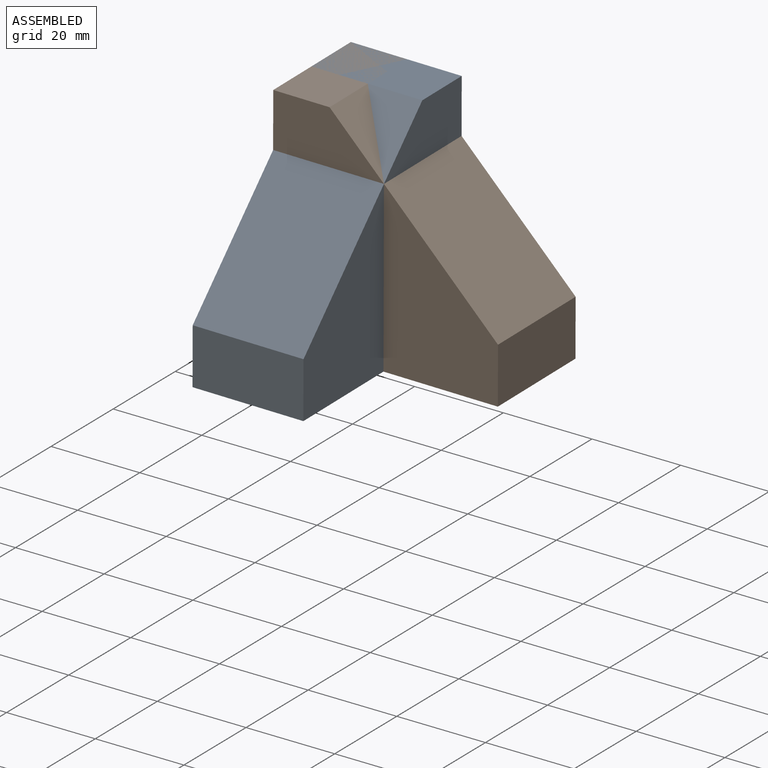
[diagram: assembled view]
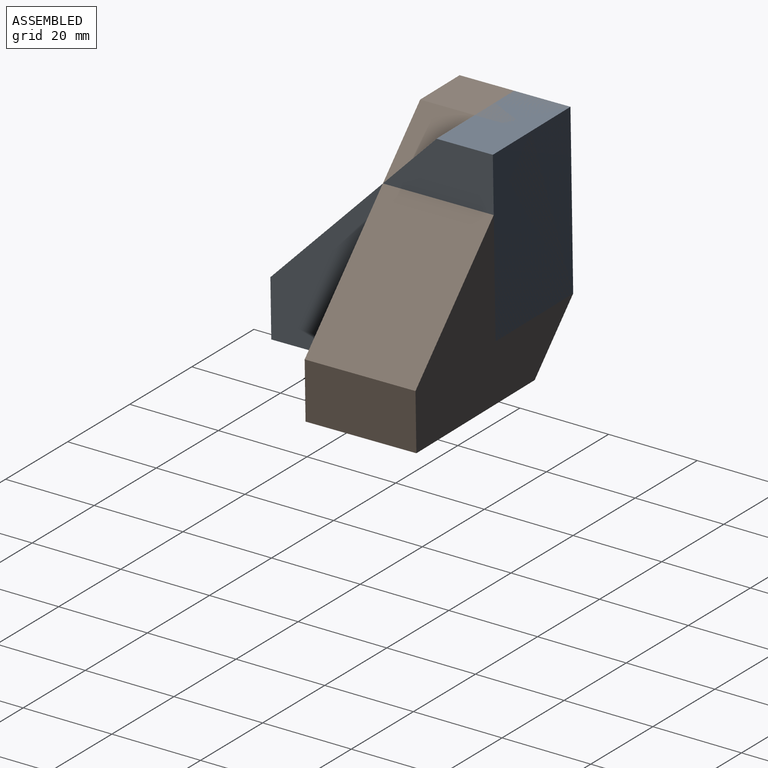
[diagram: assembled view, second angle]
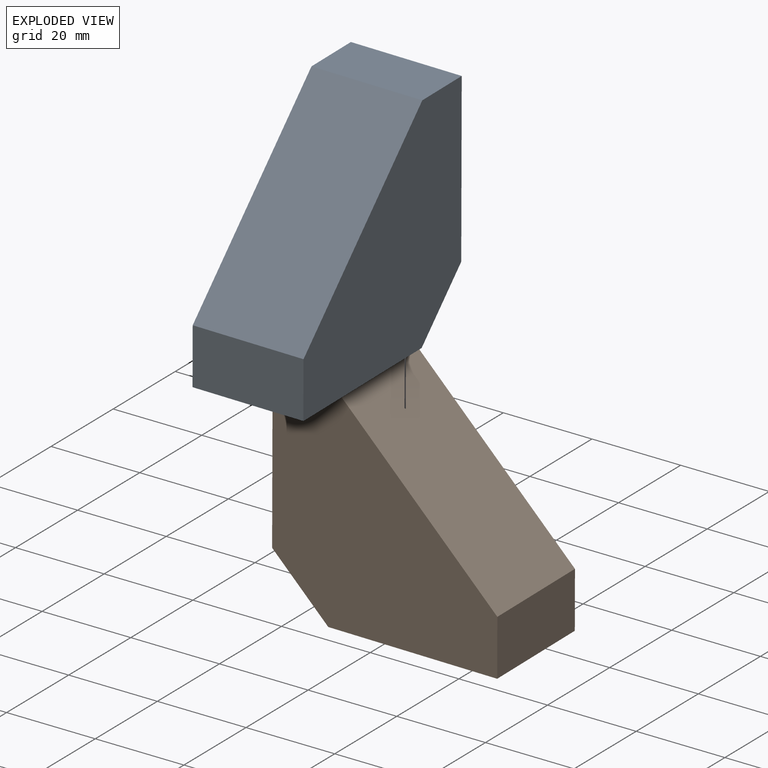
[diagram: exploded view]
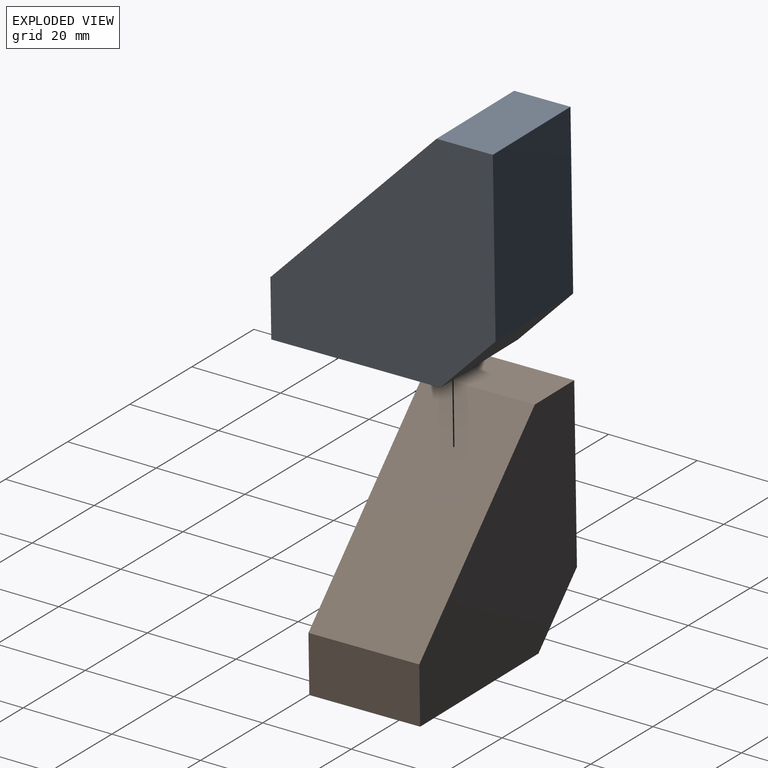
[diagram: exploded view, second angle]
ASSEMBLY  parts=2 mates=3
PART A: 8 faces, bbox 50.8x25x50.8 mm
  f0: plane 38.1x25mm, normal (0,0,-1), area 952.5mm2, adj f1,f5,f6,f7
  f1: plane 25x12.7mm, normal (1,0,0), area 317.5mm2, adj f0,f2,f6,f7
  f2: plane 38.1x38.1mm, normal (0.71,0,0.71), area 1347mm2, adj f1,f3,f6,f7
  f3: plane 25x12.7mm, normal (0,0,1), area 317.5mm2, adj f2,f4,f6,f7
  f4: plane 38.1x25mm, normal (-1,0,0), area 952.5mm2, adj f3,f5,f6,f7
  f5: plane 25x12.7mm, normal (-0.71,0,-0.71), area 449mm2, adj f0,f4,f6,f7
  f6: plane 50.8x50.8mm, normal (0,-1,0), area 1774.2mm2, adj f0,f1,f2,f3,f4,f5
  f7: plane 50.8x50.8mm, normal (0,1,0), area 1774.2mm2, adj f0,f1,f2,f3,f4,f5
PART B: same geometry as A
PLACE A rot(axis=(0,0.01,-1),90deg) t=(49.89,-17.17,9.28)mm
PLACE B rot(axis=(0.71,0.71,0),0.8deg) t=(60.54,-6.52,9.28)mm
MATE planar B.f3 <-> A.f3  axis (0.01,-0.01,1) through (43.96,-6.74,32.27)mm
MATE planar B.f7 <-> A.f4  axis (0,1,0.01) through (58.5,6.04,2.62)mm
MATE planar A.f6 <-> B.f4  axis (-1,0,0.01) through (37.33,-15.12,2.62)mm
